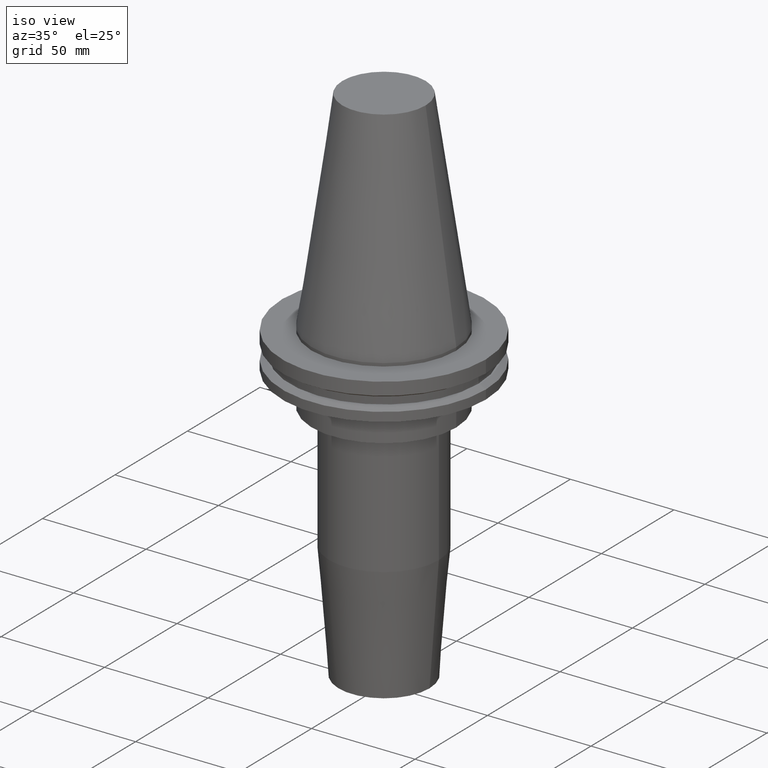
[diagram: clean part render]
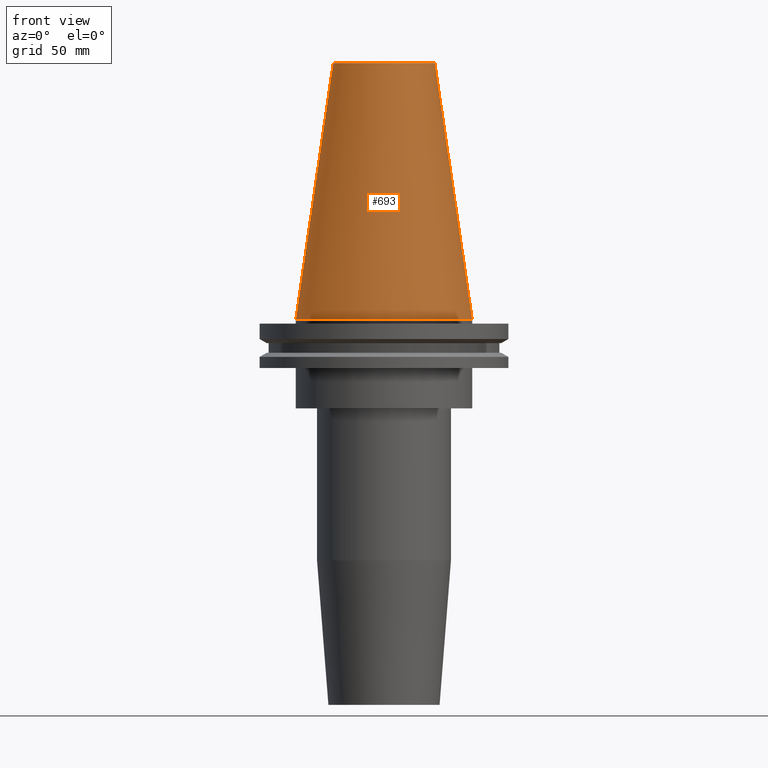
[diagram: tour spotlight — one face highlighted and labeled with its STEP entity id]
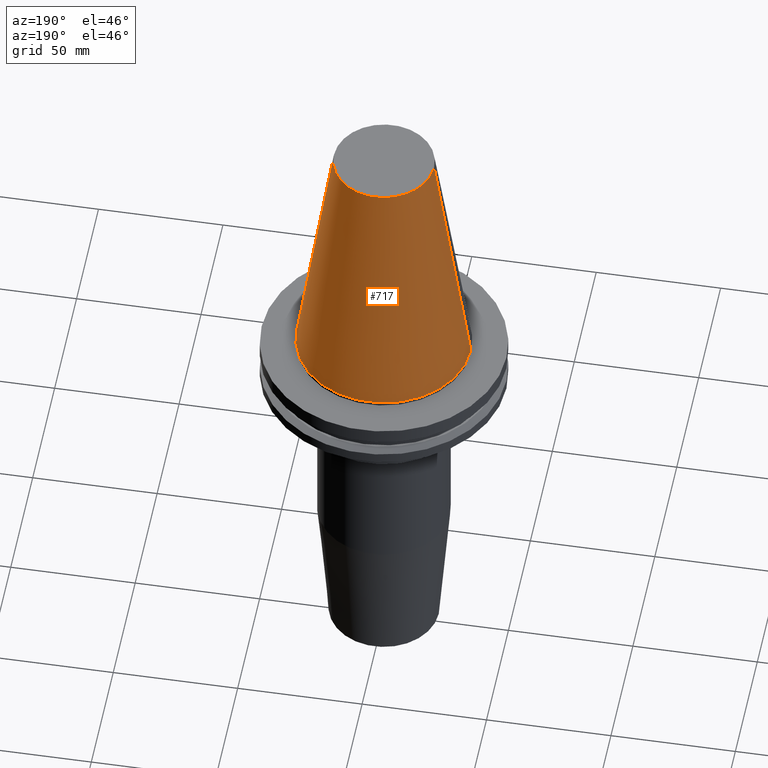
[diagram: tour spotlight — one face highlighted and labeled with its STEP entity id]
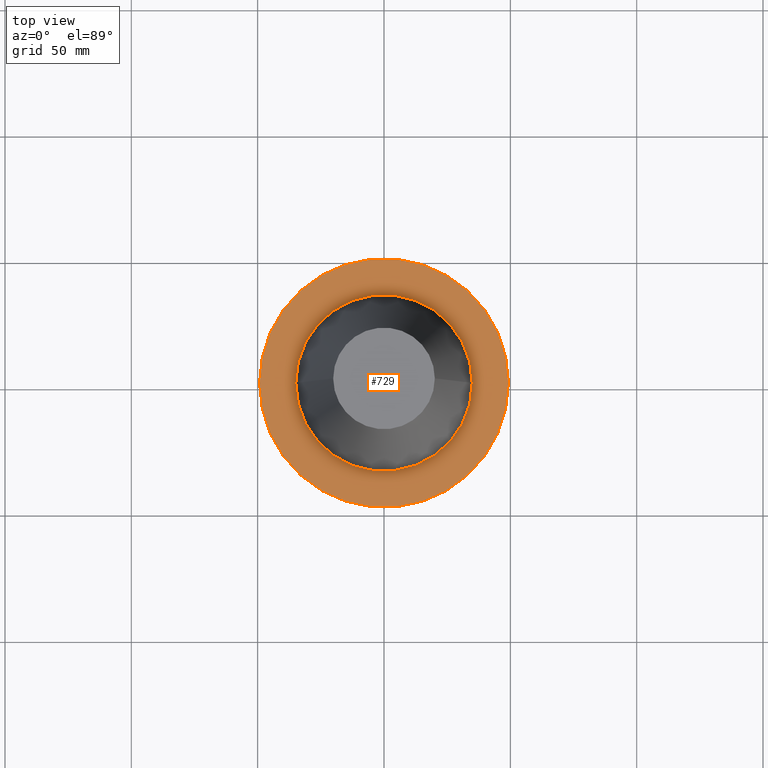
[diagram: tour spotlight — one face highlighted and labeled with its STEP entity id]
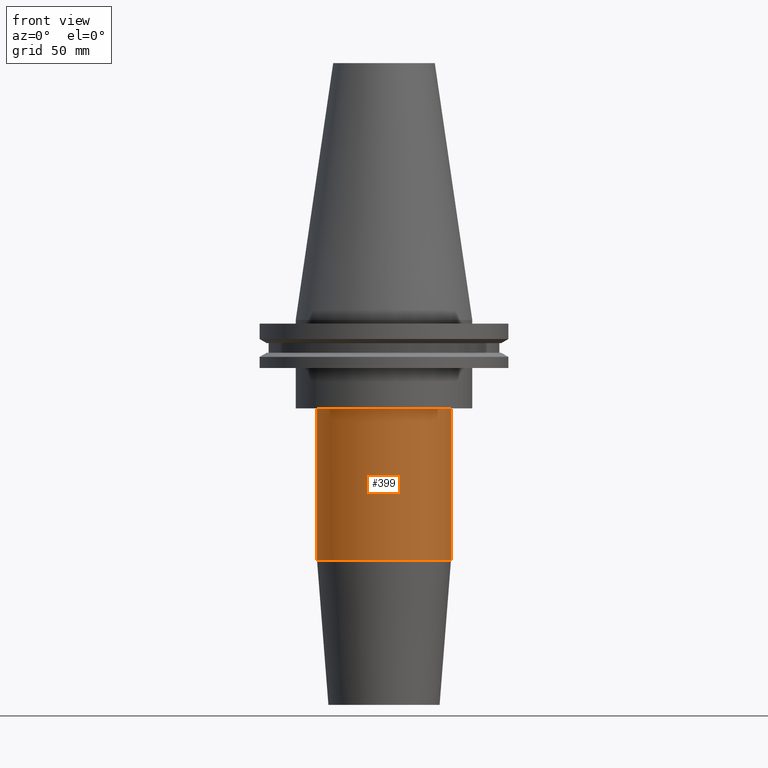
[diagram: tour spotlight — one face highlighted and labeled with its STEP entity id]
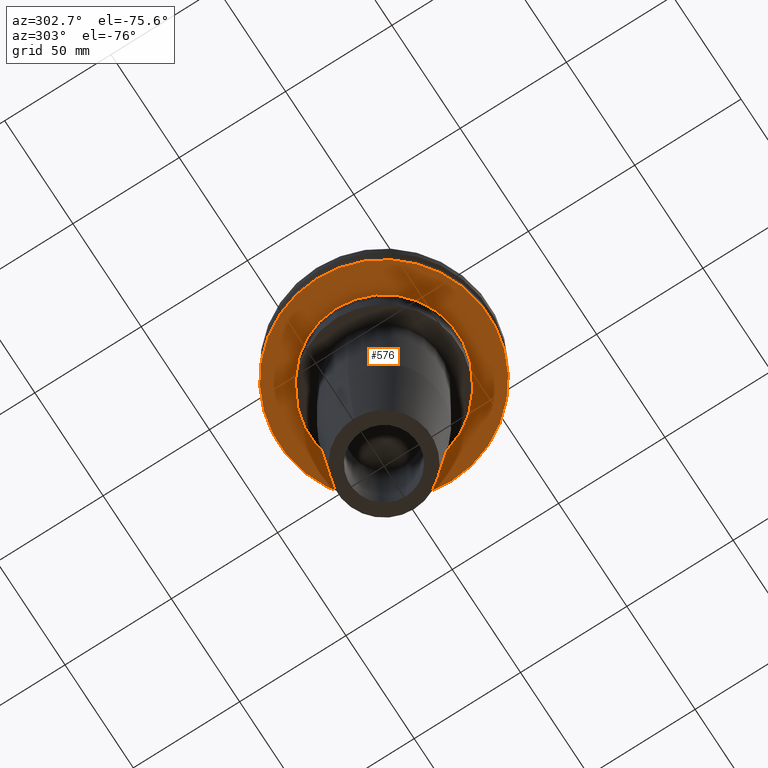
[diagram: tour spotlight — one face highlighted and labeled with its STEP entity id]
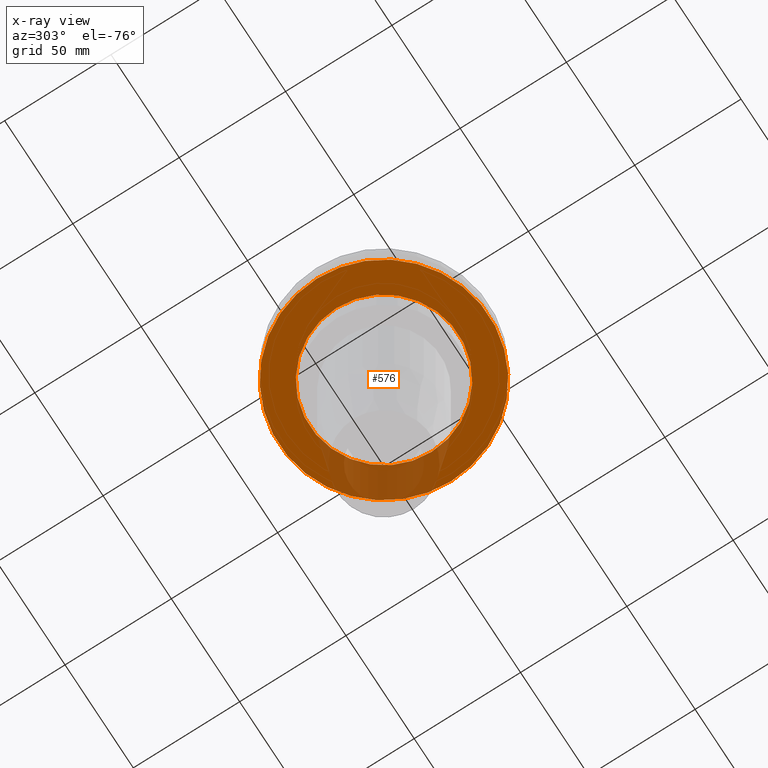
[diagram: x-ray of the same camera — body ghosted, this tour face saturated]
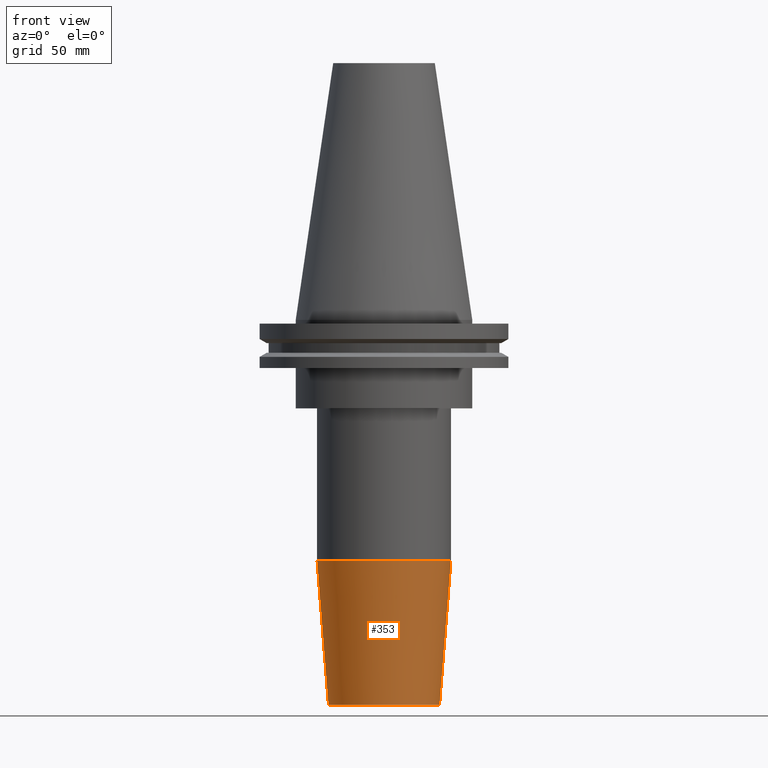
[diagram: tour spotlight — one face highlighted and labeled with its STEP entity id]
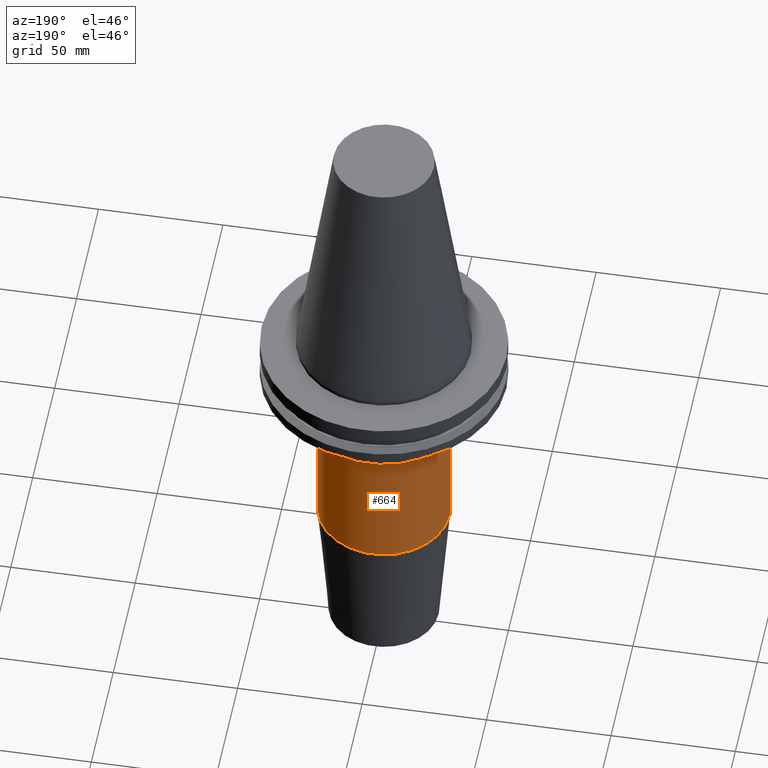
[diagram: tour spotlight — one face highlighted and labeled with its STEP entity id]
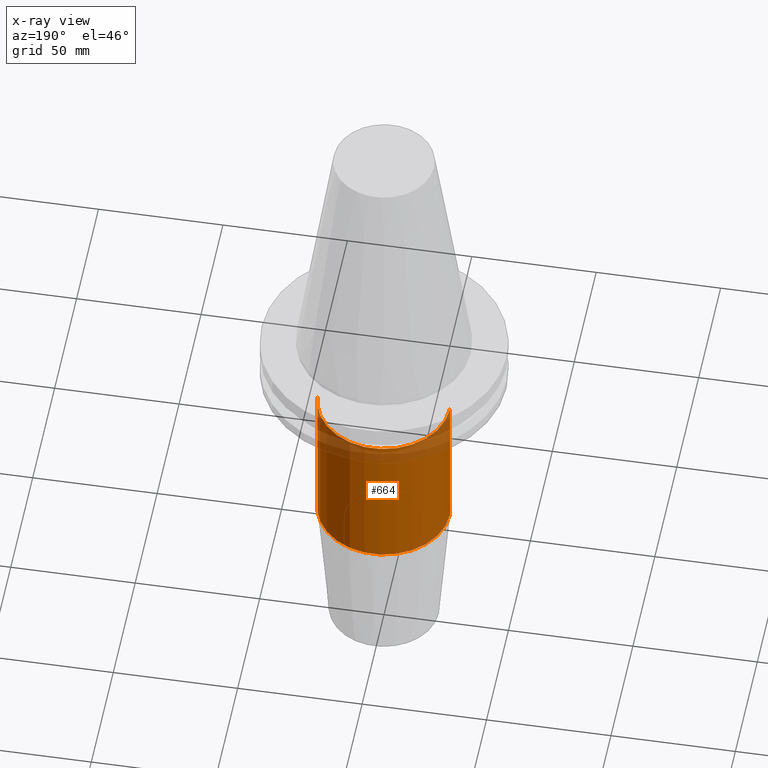
[diagram: x-ray of the same camera — body ghosted, this tour face saturated]
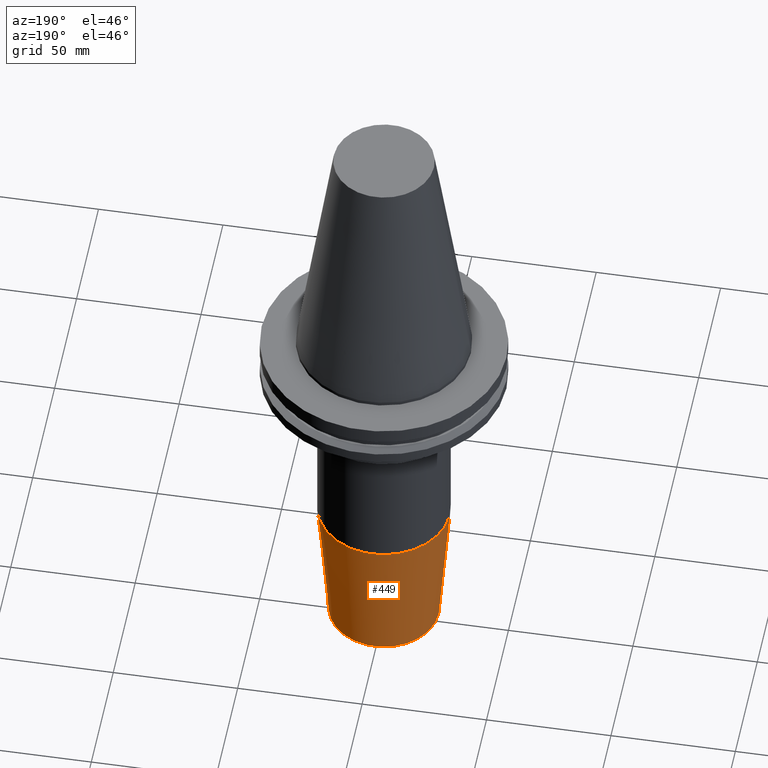
[diagram: tour spotlight — one face highlighted and labeled with its STEP entity id]
A machine part: a face-by-face anatomy tour. The part has 30 B-rep faces; the first image is the clean iso view, then the 8 largest visible faces are spotlighted one at a time (largest first), each with its STEP entity span.

Face 1 — front view, entity #693. In plain terms, the highlighted conical surface has half-angle 8.297 deg.
Definition (entity closure, byte-faithful):
#23 = DIRECTION ( 'NONE',  ( -0.000000000000000000, -0.000000000000000000, 1.000000000000000000 ) ) ;
#30 = DIRECTION ( 'NONE',  ( -0.000000000000000000, -0.000000000000000000, 1.000000000000000000 ) ) ;
#78 = EDGE_CURVE ( 'NONE', #554, #286, #797, .T. ) ;
#86 = VERTEX_POINT ( 'NONE', #502 ) ;
#93 = EDGE_CURVE ( 'NONE', #740, #554, #119, .T. ) ;
#119 = CIRCLE ( 'NONE', #433, 20.10819343178871321 ) ;
#139 = AXIS2_PLACEMENT_3D ( 'NONE', #521, #721, #320 ) ;
#142 = EDGE_CURVE ( 'NONE', #86, #286, #197, .T. ) ;
#197 = CIRCLE ( 'NONE', #501, 34.92499999999999005 ) ;
#204 = ORIENTED_EDGE ( 'NONE', *, *, #78, .F. ) ;
#212 = LINE ( 'NONE', #465, #503 ) ;
#227 = ORIENTED_EDGE ( 'NONE', *, *, #93, .F. ) ;
#255 = CARTESIAN_POINT ( 'NONE',  ( -20.10819343178871321, 0.000000000000000000, 101.5999999999999801 ) ) ;
#257 = EDGE_LOOP ( 'NONE', ( #204, #227, #631, #308 ) ) ;
#286 = VERTEX_POINT ( 'NONE', #852 ) ;
#308 = ORIENTED_EDGE ( 'NONE', *, *, #142, .T. ) ;
#320 = DIRECTION ( 'NONE',  ( -1.000000000000000000, 0.000000000000000000, 0.000000000000000000 ) ) ;
#355 = DIRECTION ( 'NONE',  ( -0.1443082272672999988, 0.000000000000000000, -0.9895327864921755756 ) ) ;
#409 = EDGE_CURVE ( 'NONE', #740, #86, #212, .T. ) ;
#418 = VECTOR ( 'NONE', #769, 999.9999999999998863 ) ;
#433 = AXIS2_PLACEMENT_3D ( 'NONE', #573, #30, #569 ) ;
#465 = CARTESIAN_POINT ( 'NONE',  ( -34.92499999999999005, 0.000000000000000000, 0.000000000000000000 ) ) ;
#501 = AXIS2_PLACEMENT_3D ( 'NONE', #633, #23, #694 ) ;
#502 = CARTESIAN_POINT ( 'NONE',  ( -34.92499999999999005, 0.000000000000000000, 0.000000000000000000 ) ) ;
#503 = VECTOR ( 'NONE', #355, 999.9999999999998863 ) ;
#521 = CARTESIAN_POINT ( 'NONE',  ( 0.000000000000000000, 0.000000000000000000, 0.000000000000000000 ) ) ;
#554 = VERTEX_POINT ( 'NONE', #700 ) ;
#569 = DIRECTION ( 'NONE',  ( 1.000000000000000000, 0.000000000000000000, 0.000000000000000000 ) ) ;
#573 = CARTESIAN_POINT ( 'NONE',  ( 0.000000000000000000, 0.000000000000000000, 101.5999999999999801 ) ) ;
#580 = FACE_OUTER_BOUND ( 'NONE', #257, .T. ) ;
#631 = ORIENTED_EDGE ( 'NONE', *, *, #409, .T. ) ;
#633 = CARTESIAN_POINT ( 'NONE',  ( 0.000000000000000000, 0.000000000000000000, 0.000000000000000000 ) ) ;
#671 = CARTESIAN_POINT ( 'NONE',  ( 34.92499999999999005, 4.277078946022130098E-15, 0.000000000000000000 ) ) ;
#693 = ADVANCED_FACE ( 'NONE', ( #580 ), #825, .T. ) ;
#694 = DIRECTION ( 'NONE',  ( 1.000000000000000000, 0.000000000000000000, 0.000000000000000000 ) ) ;
#700 = CARTESIAN_POINT ( 'NONE',  ( 20.10819343178871321, 3.369811209154858606E-15, 101.5999999999999801 ) ) ;
#721 = DIRECTION ( 'NONE',  ( 0.000000000000000000, 0.000000000000000000, -1.000000000000000000 ) ) ;
#740 = VERTEX_POINT ( 'NONE', #255 ) ;
#769 = DIRECTION ( 'NONE',  ( 0.1443082272672999988, 1.767266086135277066E-17, -0.9895327864921755756 ) ) ;
#797 = LINE ( 'NONE', #671, #418 ) ;
#825 = CONICAL_SURFACE ( 'NONE', #139, 34.92499999999999005, 0.1448138465474119452 ) ;
#852 = CARTESIAN_POINT ( 'NONE',  ( 34.92499999999999005, 4.277078946022130098E-15, 0.000000000000000000 ) ) ;

Face 2 — auxiliary view, entity #717. In plain terms, the highlighted conical surface has half-angle 8.297 deg.
Definition (entity closure, byte-faithful):
#33 = CIRCLE ( 'NONE', #518, 34.92499999999999005 ) ;
#47 = DIRECTION ( 'NONE',  ( -0.000000000000000000, -0.000000000000000000, 1.000000000000000000 ) ) ;
#64 = ORIENTED_EDGE ( 'NONE', *, *, #78, .T. ) ;
#67 = CIRCLE ( 'NONE', #443, 20.10819343178871321 ) ;
#78 = EDGE_CURVE ( 'NONE', #554, #286, #797, .T. ) ;
#86 = VERTEX_POINT ( 'NONE', #502 ) ;
#110 = ORIENTED_EDGE ( 'NONE', *, *, #409, .F. ) ;
#178 = ORIENTED_EDGE ( 'NONE', *, *, #304, .T. ) ;
#212 = LINE ( 'NONE', #465, #503 ) ;
#255 = CARTESIAN_POINT ( 'NONE',  ( -20.10819343178871321, 0.000000000000000000, 101.5999999999999801 ) ) ;
#286 = VERTEX_POINT ( 'NONE', #852 ) ;
#304 = EDGE_CURVE ( 'NONE', #286, #86, #33, .T. ) ;
#346 = ORIENTED_EDGE ( 'NONE', *, *, #724, .F. ) ;
#355 = DIRECTION ( 'NONE',  ( -0.1443082272672999988, 0.000000000000000000, -0.9895327864921755756 ) ) ;
#409 = EDGE_CURVE ( 'NONE', #740, #86, #212, .T. ) ;
#418 = VECTOR ( 'NONE', #769, 999.9999999999998863 ) ;
#443 = AXIS2_PLACEMENT_3D ( 'NONE', #771, #47, #647 ) ;
#444 = CONICAL_SURFACE ( 'NONE', #550, 34.92499999999999005, 0.1448138465474119452 ) ;
#451 = DIRECTION ( 'NONE',  ( 0.000000000000000000, 0.000000000000000000, -1.000000000000000000 ) ) ;
#465 = CARTESIAN_POINT ( 'NONE',  ( -34.92499999999999005, 0.000000000000000000, 0.000000000000000000 ) ) ;
#502 = CARTESIAN_POINT ( 'NONE',  ( -34.92499999999999005, 0.000000000000000000, 0.000000000000000000 ) ) ;
#503 = VECTOR ( 'NONE', #355, 999.9999999999998863 ) ;
#505 = DIRECTION ( 'NONE',  ( -1.000000000000000000, 0.000000000000000000, 0.000000000000000000 ) ) ;
#518 = AXIS2_PLACEMENT_3D ( 'NONE', #716, #840, #645 ) ;
#550 = AXIS2_PLACEMENT_3D ( 'NONE', #850, #451, #505 ) ;
#554 = VERTEX_POINT ( 'NONE', #700 ) ;
#591 = FACE_OUTER_BOUND ( 'NONE', #782, .T. ) ;
#645 = DIRECTION ( 'NONE',  ( 1.000000000000000000, 0.000000000000000000, 0.000000000000000000 ) ) ;
#647 = DIRECTION ( 'NONE',  ( 1.000000000000000000, 0.000000000000000000, 0.000000000000000000 ) ) ;
#671 = CARTESIAN_POINT ( 'NONE',  ( 34.92499999999999005, 4.277078946022130098E-15, 0.000000000000000000 ) ) ;
#700 = CARTESIAN_POINT ( 'NONE',  ( 20.10819343178871321, 3.369811209154858606E-15, 101.5999999999999801 ) ) ;
#716 = CARTESIAN_POINT ( 'NONE',  ( 0.000000000000000000, 0.000000000000000000, 0.000000000000000000 ) ) ;
#717 = ADVANCED_FACE ( 'NONE', ( #591 ), #444, .T. ) ;
#724 = EDGE_CURVE ( 'NONE', #554, #740, #67, .T. ) ;
#740 = VERTEX_POINT ( 'NONE', #255 ) ;
#769 = DIRECTION ( 'NONE',  ( 0.1443082272672999988, 1.767266086135277066E-17, -0.9895327864921755756 ) ) ;
#771 = CARTESIAN_POINT ( 'NONE',  ( 0.000000000000000000, 0.000000000000000000, 101.5999999999999801 ) ) ;
#782 = EDGE_LOOP ( 'NONE', ( #346, #64, #178, #110 ) ) ;
#797 = LINE ( 'NONE', #671, #418 ) ;
#840 = DIRECTION ( 'NONE',  ( -0.000000000000000000, -0.000000000000000000, 1.000000000000000000 ) ) ;
#850 = CARTESIAN_POINT ( 'NONE',  ( 0.000000000000000000, 0.000000000000000000, 0.000000000000000000 ) ) ;
#852 = CARTESIAN_POINT ( 'NONE',  ( 34.92499999999999005, 4.277078946022130098E-15, 0.000000000000000000 ) ) ;

Face 3 — top view, entity #729. In plain terms, the highlighted planar face has unit normal (0, 0, -1).
Definition (entity closure, byte-faithful):
#41 = ORIENTED_EDGE ( 'NONE', *, *, #565, .F. ) ;
#55 = PLANE ( 'NONE',  #192 ) ;
#63 = CARTESIAN_POINT ( 'NONE',  ( -34.92499999999999005, 4.277078946022130098E-15, -1.499999999999987566 ) ) ;
#80 = ORIENTED_EDGE ( 'NONE', *, *, #301, .T. ) ;
#91 = EDGE_LOOP ( 'NONE', ( #232, #80 ) ) ;
#122 = CARTESIAN_POINT ( 'NONE',  ( 0.000000000000000000, 0.000000000000000000, -1.499999999999987566 ) ) ;
#157 = AXIS2_PLACEMENT_3D ( 'NONE', #424, #831, #359 ) ;
#181 = DIRECTION ( 'NONE',  ( -0.000000000000000000, -0.000000000000000000, 1.000000000000000000 ) ) ;
#192 = AXIS2_PLACEMENT_3D ( 'NONE', #585, #835, #263 ) ;
#194 = DIRECTION ( 'NONE',  ( 1.000000000000000000, 0.000000000000000000, 0.000000000000000000 ) ) ;
#205 = CIRCLE ( 'NONE', #677, 49.21499999999999631 ) ;
#232 = ORIENTED_EDGE ( 'NONE', *, *, #758, .T. ) ;
#263 = DIRECTION ( 'NONE',  ( -1.000000000000000000, 0.000000000000000000, -0.000000000000000000 ) ) ;
#301 = EDGE_CURVE ( 'NONE', #316, #463, #344, .T. ) ;
#306 = CARTESIAN_POINT ( 'NONE',  ( 49.21499999999999631, 0.000000000000000000, -1.499999999999987566 ) ) ;
#316 = VERTEX_POINT ( 'NONE', #658 ) ;
#344 = CIRCLE ( 'NONE', #818, 49.21499999999999631 ) ;
#359 = DIRECTION ( 'NONE',  ( 1.000000000000000000, 0.000000000000000000, 0.000000000000000000 ) ) ;
#380 = ORIENTED_EDGE ( 'NONE', *, *, #552, .F. ) ;
#385 = DIRECTION ( 'NONE',  ( -0.000000000000000000, -0.000000000000000000, 1.000000000000000000 ) ) ;
#424 = CARTESIAN_POINT ( 'NONE',  ( 0.000000000000000000, 0.000000000000000000, -1.499999999999987566 ) ) ;
#441 = FACE_BOUND ( 'NONE', #611, .T. ) ;
#463 = VERTEX_POINT ( 'NONE', #306 ) ;
#468 = CARTESIAN_POINT ( 'NONE',  ( 34.92499999999999005, 0.000000000000000000, -1.499999999999987566 ) ) ;
#480 = AXIS2_PLACEMENT_3D ( 'NONE', #616, #181, #499 ) ;
#499 = DIRECTION ( 'NONE',  ( 1.000000000000000000, 0.000000000000000000, 0.000000000000000000 ) ) ;
#524 = CIRCLE ( 'NONE', #157, 34.92499999999999005 ) ;
#552 = EDGE_CURVE ( 'NONE', #654, #791, #637, .T. ) ;
#565 = EDGE_CURVE ( 'NONE', #791, #654, #524, .T. ) ;
#575 = FACE_OUTER_BOUND ( 'NONE', #91, .T. ) ;
#585 = CARTESIAN_POINT ( 'NONE',  ( 0.000000000000000000, 49.21499999999999631, -1.499999999999992895 ) ) ;
#611 = EDGE_LOOP ( 'NONE', ( #41, #380 ) ) ;
#616 = CARTESIAN_POINT ( 'NONE',  ( 0.000000000000000000, 0.000000000000000000, -1.499999999999987566 ) ) ;
#637 = CIRCLE ( 'NONE', #480, 34.92499999999999005 ) ;
#654 = VERTEX_POINT ( 'NONE', #63 ) ;
#658 = CARTESIAN_POINT ( 'NONE',  ( -49.21499999999999631, 6.027099222003697826E-15, -1.499999999999987566 ) ) ;
#677 = AXIS2_PLACEMENT_3D ( 'NONE', #783, #776, #194 ) ;
#729 = ADVANCED_FACE ( 'NONE', ( #441, #575 ), #55, .F. ) ;
#758 = EDGE_CURVE ( 'NONE', #463, #316, #205, .T. ) ;
#776 = DIRECTION ( 'NONE',  ( -0.000000000000000000, -0.000000000000000000, 1.000000000000000000 ) ) ;
#783 = CARTESIAN_POINT ( 'NONE',  ( 0.000000000000000000, 0.000000000000000000, -1.499999999999987566 ) ) ;
#786 = DIRECTION ( 'NONE',  ( 1.000000000000000000, 0.000000000000000000, 0.000000000000000000 ) ) ;
#791 = VERTEX_POINT ( 'NONE', #468 ) ;
#818 = AXIS2_PLACEMENT_3D ( 'NONE', #122, #385, #786 ) ;
#831 = DIRECTION ( 'NONE',  ( -0.000000000000000000, -0.000000000000000000, 1.000000000000000000 ) ) ;
#835 = DIRECTION ( 'NONE',  ( 0.000000000000000000, 0.000000000000000000, -1.000000000000000000 ) ) ;

Face 4 — front view, entity #399. In plain terms, the highlighted cylindrical surface (partial cylindrical patch) has radius 26.5 mm, axis along (-0, -0, 1).
Definition (entity closure, byte-faithful):
#17 = CARTESIAN_POINT ( 'NONE',  ( 26.50000000000000000, 0.000000000000000000, -35.04999999999999716 ) ) ;
#24 = ORIENTED_EDGE ( 'NONE', *, *, #388, .F. ) ;
#39 = CARTESIAN_POINT ( 'NONE',  ( 0.000000000000000000, 0.000000000000000000, -35.04999999999999716 ) ) ;
#73 = VECTOR ( 'NONE', #854, 1000.000000000000000 ) ;
#144 = LINE ( 'NONE', #404, #379 ) ;
#160 = CARTESIAN_POINT ( 'NONE',  ( -26.50000000000000000, 3.245314017740485765E-15, -95.22207868720845170 ) ) ;
#168 = VERTEX_POINT ( 'NONE', #765 ) ;
#169 = DIRECTION ( 'NONE',  ( -0.000000000000000000, -0.000000000000000000, 1.000000000000000000 ) ) ;
#171 = AXIS2_PLACEMENT_3D ( 'NONE', #39, #169, #364 ) ;
#176 = EDGE_CURVE ( 'NONE', #548, #168, #626, .T. ) ;
#201 = ORIENTED_EDGE ( 'NONE', *, *, #176, .T. ) ;
#252 = DIRECTION ( 'NONE',  ( -0.000000000000000000, -0.000000000000000000, 1.000000000000000000 ) ) ;
#283 = CYLINDRICAL_SURFACE ( 'NONE', #710, 26.50000000000000000 ) ;
#364 = DIRECTION ( 'NONE',  ( 1.000000000000000000, 0.000000000000000000, 0.000000000000000000 ) ) ;
#379 = VECTOR ( 'NONE', #801, 1000.000000000000000 ) ;
#388 = EDGE_CURVE ( 'NONE', #548, #744, #805, .T. ) ;
#399 = ADVANCED_FACE ( 'NONE', ( #599 ), #283, .T. ) ;
#404 = CARTESIAN_POINT ( 'NONE',  ( 26.50000000000000000, 0.000000000000000000, 0.000000000000000000 ) ) ;
#411 = VERTEX_POINT ( 'NONE', #17 ) ;
#420 = EDGE_LOOP ( 'NONE', ( #24, #201, #459, #634 ) ) ;
#432 = EDGE_CURVE ( 'NONE', #168, #411, #144, .T. ) ;
#459 = ORIENTED_EDGE ( 'NONE', *, *, #432, .T. ) ;
#469 = CARTESIAN_POINT ( 'NONE',  ( -26.50000000000000000, 3.245314017740485765E-15, 0.000000000000000000 ) ) ;
#484 = EDGE_CURVE ( 'NONE', #744, #411, #691, .T. ) ;
#506 = DIRECTION ( 'NONE',  ( 1.000000000000000000, 0.000000000000000000, 0.000000000000000000 ) ) ;
#508 = CARTESIAN_POINT ( 'NONE',  ( -26.50000000000000000, 3.245314017740485765E-15, -35.04999999999999716 ) ) ;
#536 = CARTESIAN_POINT ( 'NONE',  ( 0.000000000000000000, 0.000000000000000000, 0.000000000000000000 ) ) ;
#548 = VERTEX_POINT ( 'NONE', #160 ) ;
#599 = FACE_OUTER_BOUND ( 'NONE', #420, .T. ) ;
#626 = CIRCLE ( 'NONE', #723, 26.50000000000000000 ) ;
#634 = ORIENTED_EDGE ( 'NONE', *, *, #484, .F. ) ;
#679 = DIRECTION ( 'NONE',  ( 1.000000000000000000, 0.000000000000000000, 0.000000000000000000 ) ) ;
#691 = CIRCLE ( 'NONE', #171, 26.50000000000000000 ) ;
#697 = CARTESIAN_POINT ( 'NONE',  ( 0.000000000000000000, 0.000000000000000000, -95.22207868720845170 ) ) ;
#710 = AXIS2_PLACEMENT_3D ( 'NONE', #536, #792, #679 ) ;
#723 = AXIS2_PLACEMENT_3D ( 'NONE', #697, #252, #506 ) ;
#744 = VERTEX_POINT ( 'NONE', #508 ) ;
#765 = CARTESIAN_POINT ( 'NONE',  ( 26.50000000000000000, 0.000000000000000000, -95.22207868720845170 ) ) ;
#792 = DIRECTION ( 'NONE',  ( -0.000000000000000000, -0.000000000000000000, 1.000000000000000000 ) ) ;
#801 = DIRECTION ( 'NONE',  ( -0.000000000000000000, -0.000000000000000000, 1.000000000000000000 ) ) ;
#805 = LINE ( 'NONE', #469, #73 ) ;
#854 = DIRECTION ( 'NONE',  ( -0.000000000000000000, -0.000000000000000000, 1.000000000000000000 ) ) ;

Face 5 — auxiliary view, entity #576. An x-ray twin of the same camera follows (body ghosted, this face saturated) — the face is partly hidden behind the body. In plain terms, the highlighted planar face has unit normal (0, -0, 1).
Definition (entity closure, byte-faithful):
#8 = CIRCLE ( 'NONE', #837, 49.21499999999998920 ) ;
#32 = AXIS2_PLACEMENT_3D ( 'NONE', #167, #434, #374 ) ;
#43 = DIRECTION ( 'NONE',  ( 0.000000000000000000, -0.000000000000000000, 1.000000000000000000 ) ) ;
#95 = DIRECTION ( 'NONE',  ( -0.000000000000000000, -0.000000000000000000, 1.000000000000000000 ) ) ;
#108 = CARTESIAN_POINT ( 'NONE',  ( 0.000000000000000000, 0.000000000000000000, -19.04999999999999716 ) ) ;
#111 = FACE_BOUND ( 'NONE', #512, .T. ) ;
#126 = AXIS2_PLACEMENT_3D ( 'NONE', #695, #95, #247 ) ;
#167 = CARTESIAN_POINT ( 'NONE',  ( 0.000000000000000000, 0.000000000000000000, -19.04999999999999716 ) ) ;
#172 = ORIENTED_EDGE ( 'NONE', *, *, #198, .T. ) ;
#198 = EDGE_CURVE ( 'NONE', #661, #811, #557, .T. ) ;
#214 = EDGE_CURVE ( 'NONE', #811, #661, #402, .T. ) ;
#239 = DIRECTION ( 'NONE',  ( 1.000000000000000000, 0.000000000000000000, 0.000000000000000000 ) ) ;
#247 = DIRECTION ( 'NONE',  ( 1.000000000000000000, 0.000000000000000000, 0.000000000000000000 ) ) ;
#251 = DIRECTION ( 'NONE',  ( 1.000000000000000000, 0.000000000000000000, 0.000000000000000000 ) ) ;
#296 = PLANE ( 'NONE',  #366 ) ;
#335 = VERTEX_POINT ( 'NONE', #348 ) ;
#348 = CARTESIAN_POINT ( 'NONE',  ( -49.21499999999998920, 6.027099222003697037E-15, -19.04999999999999716 ) ) ;
#361 = EDGE_LOOP ( 'NONE', ( #579, #478 ) ) ;
#366 = AXIS2_PLACEMENT_3D ( 'NONE', #377, #43, #251 ) ;
#374 = DIRECTION ( 'NONE',  ( 1.000000000000000000, 0.000000000000000000, 0.000000000000000000 ) ) ;
#377 = CARTESIAN_POINT ( 'NONE',  ( 0.000000000000000000, 49.21499999999998920, -19.04999999999999716 ) ) ;
#402 = CIRCLE ( 'NONE', #32, 34.92499999999999716 ) ;
#412 = CARTESIAN_POINT ( 'NONE',  ( 34.92499999999999716, 0.000000000000000000, -19.04999999999999716 ) ) ;
#434 = DIRECTION ( 'NONE',  ( -0.000000000000000000, -0.000000000000000000, 1.000000000000000000 ) ) ;
#474 = EDGE_CURVE ( 'NONE', #672, #335, #8, .T. ) ;
#478 = ORIENTED_EDGE ( 'NONE', *, *, #539, .F. ) ;
#512 = EDGE_LOOP ( 'NONE', ( #528, #172 ) ) ;
#528 = ORIENTED_EDGE ( 'NONE', *, *, #214, .T. ) ;
#539 = EDGE_CURVE ( 'NONE', #335, #672, #594, .T. ) ;
#557 = CIRCLE ( 'NONE', #780, 34.92499999999999716 ) ;
#576 = ADVANCED_FACE ( 'NONE', ( #822, #111 ), #296, .F. ) ;
#579 = ORIENTED_EDGE ( 'NONE', *, *, #474, .F. ) ;
#594 = CIRCLE ( 'NONE', #126, 49.21499999999998920 ) ;
#632 = CARTESIAN_POINT ( 'NONE',  ( 0.000000000000000000, 0.000000000000000000, -19.04999999999999716 ) ) ;
#636 = DIRECTION ( 'NONE',  ( -0.000000000000000000, -0.000000000000000000, 1.000000000000000000 ) ) ;
#661 = VERTEX_POINT ( 'NONE', #779 ) ;
#672 = VERTEX_POINT ( 'NONE', #713 ) ;
#695 = CARTESIAN_POINT ( 'NONE',  ( 0.000000000000000000, 0.000000000000000000, -19.04999999999999716 ) ) ;
#713 = CARTESIAN_POINT ( 'NONE',  ( 49.21499999999998920, 0.000000000000000000, -19.04999999999999716 ) ) ;
#752 = DIRECTION ( 'NONE',  ( 1.000000000000000000, 0.000000000000000000, 0.000000000000000000 ) ) ;
#757 = DIRECTION ( 'NONE',  ( -0.000000000000000000, -0.000000000000000000, 1.000000000000000000 ) ) ;
#779 = CARTESIAN_POINT ( 'NONE',  ( -34.92499999999999716, 4.277078946022130887E-15, -19.04999999999999716 ) ) ;
#780 = AXIS2_PLACEMENT_3D ( 'NONE', #108, #757, #239 ) ;
#811 = VERTEX_POINT ( 'NONE', #412 ) ;
#822 = FACE_OUTER_BOUND ( 'NONE', #361, .T. ) ;
#837 = AXIS2_PLACEMENT_3D ( 'NONE', #632, #636, #752 ) ;

Face 6 — front view, entity #353. In plain terms, the highlighted conical surface has half-angle 4.5 deg.
Definition (entity closure, byte-faithful):
#71 = DIRECTION ( 'NONE',  ( 1.000000000000000000, 0.000000000000000000, 0.000000000000000000 ) ) ;
#102 = VERTEX_POINT ( 'NONE', #307 ) ;
#158 = ORIENTED_EDGE ( 'NONE', *, *, #482, .T. ) ;
#160 = CARTESIAN_POINT ( 'NONE',  ( -26.50000000000000000, 3.245314017740485765E-15, -95.22207868720845170 ) ) ;
#168 = VERTEX_POINT ( 'NONE', #765 ) ;
#176 = EDGE_CURVE ( 'NONE', #548, #168, #626, .T. ) ;
#177 = CARTESIAN_POINT ( 'NONE',  ( 0.000000000000000000, 0.000000000000000000, -152.4000000000000057 ) ) ;
#183 = EDGE_CURVE ( 'NONE', #799, #102, #641, .T. ) ;
#233 = CARTESIAN_POINT ( 'NONE',  ( -22.00000000000000000, 2.694222958124176809E-15, -152.4000000000000057 ) ) ;
#252 = DIRECTION ( 'NONE',  ( -0.000000000000000000, -0.000000000000000000, 1.000000000000000000 ) ) ;
#282 = VECTOR ( 'NONE', #692, 999.9999999999998863 ) ;
#288 = DIRECTION ( 'NONE',  ( -0.000000000000000000, -0.000000000000000000, 1.000000000000000000 ) ) ;
#307 = CARTESIAN_POINT ( 'NONE',  ( 22.00000000000000000, 0.000000000000000000, -152.4000000000000057 ) ) ;
#314 = LINE ( 'NONE', #417, #620 ) ;
#328 = AXIS2_PLACEMENT_3D ( 'NONE', #743, #288, #71 ) ;
#353 = ADVANCED_FACE ( 'NONE', ( #674 ), #845, .T. ) ;
#391 = ORIENTED_EDGE ( 'NONE', *, *, #578, .F. ) ;
#417 = CARTESIAN_POINT ( 'NONE',  ( 22.00000000000000000, 0.000000000000000000, -152.4000000000000057 ) ) ;
#426 = ORIENTED_EDGE ( 'NONE', *, *, #176, .F. ) ;
#472 = CARTESIAN_POINT ( 'NONE',  ( -22.00000000000000000, 2.969768487932331287E-15, -152.4000000000000057 ) ) ;
#482 = EDGE_CURVE ( 'NONE', #102, #168, #314, .T. ) ;
#491 = DIRECTION ( 'NONE',  ( 0.07845909572783764385, 0.000000000000000000, 0.9969173337331286300 ) ) ;
#506 = DIRECTION ( 'NONE',  ( 1.000000000000000000, 0.000000000000000000, 0.000000000000000000 ) ) ;
#548 = VERTEX_POINT ( 'NONE', #160 ) ;
#578 = EDGE_CURVE ( 'NONE', #799, #548, #685, .T. ) ;
#620 = VECTOR ( 'NONE', #491, 999.9999999999998863 ) ;
#626 = CIRCLE ( 'NONE', #723, 26.50000000000000000 ) ;
#641 = CIRCLE ( 'NONE', #683, 22.00000000000000000 ) ;
#674 = FACE_OUTER_BOUND ( 'NONE', #725, .T. ) ;
#683 = AXIS2_PLACEMENT_3D ( 'NONE', #177, #815, #821 ) ;
#685 = LINE ( 'NONE', #233, #282 ) ;
#692 = DIRECTION ( 'NONE',  ( -0.07845909572783764385, 9.608468044709212160E-18, 0.9969173337331286300 ) ) ;
#697 = CARTESIAN_POINT ( 'NONE',  ( 0.000000000000000000, 0.000000000000000000, -95.22207868720845170 ) ) ;
#723 = AXIS2_PLACEMENT_3D ( 'NONE', #697, #252, #506 ) ;
#725 = EDGE_LOOP ( 'NONE', ( #391, #841, #158, #426 ) ) ;
#743 = CARTESIAN_POINT ( 'NONE',  ( 0.000000000000000000, 0.000000000000000000, -152.4000000000000057 ) ) ;
#765 = CARTESIAN_POINT ( 'NONE',  ( 26.50000000000000000, 0.000000000000000000, -95.22207868720845170 ) ) ;
#799 = VERTEX_POINT ( 'NONE', #472 ) ;
#815 = DIRECTION ( 'NONE',  ( -0.000000000000000000, -0.000000000000000000, 1.000000000000000000 ) ) ;
#821 = DIRECTION ( 'NONE',  ( 1.000000000000000000, 0.000000000000000000, 0.000000000000000000 ) ) ;
#841 = ORIENTED_EDGE ( 'NONE', *, *, #183, .T. ) ;
#845 = CONICAL_SURFACE ( 'NONE', #328, 22.00000000000000000, 0.07853981633973751431 ) ;

Face 7 — auxiliary view, entity #664. An x-ray twin of the same camera follows (body ghosted, this face saturated) — the face is partly hidden behind the body. In plain terms, the highlighted cylindrical surface (partial cylindrical patch) has radius 26.5 mm, axis along (-0, -0, 1).
Definition (entity closure, byte-faithful):
#13 = CARTESIAN_POINT ( 'NONE',  ( 0.000000000000000000, 0.000000000000000000, -35.04999999999999716 ) ) ;
#17 = CARTESIAN_POINT ( 'NONE',  ( 26.50000000000000000, 0.000000000000000000, -35.04999999999999716 ) ) ;
#73 = VECTOR ( 'NONE', #854, 1000.000000000000000 ) ;
#115 = DIRECTION ( 'NONE',  ( 1.000000000000000000, 0.000000000000000000, 0.000000000000000000 ) ) ;
#121 = FACE_OUTER_BOUND ( 'NONE', #504, .T. ) ;
#131 = CARTESIAN_POINT ( 'NONE',  ( 0.000000000000000000, 0.000000000000000000, 0.000000000000000000 ) ) ;
#144 = LINE ( 'NONE', #404, #379 ) ;
#146 = CIRCLE ( 'NONE', #371, 26.50000000000000000 ) ;
#160 = CARTESIAN_POINT ( 'NONE',  ( -26.50000000000000000, 3.245314017740485765E-15, -95.22207868720845170 ) ) ;
#168 = VERTEX_POINT ( 'NONE', #765 ) ;
#200 = CYLINDRICAL_SURFACE ( 'NONE', #495, 26.50000000000000000 ) ;
#258 = AXIS2_PLACEMENT_3D ( 'NONE', #477, #800, #464 ) ;
#279 = ORIENTED_EDGE ( 'NONE', *, *, #773, .T. ) ;
#327 = EDGE_CURVE ( 'NONE', #411, #744, #146, .T. ) ;
#339 = DIRECTION ( 'NONE',  ( 1.000000000000000000, 0.000000000000000000, 0.000000000000000000 ) ) ;
#350 = ORIENTED_EDGE ( 'NONE', *, *, #388, .T. ) ;
#371 = AXIS2_PLACEMENT_3D ( 'NONE', #13, #670, #339 ) ;
#375 = ORIENTED_EDGE ( 'NONE', *, *, #432, .F. ) ;
#379 = VECTOR ( 'NONE', #801, 1000.000000000000000 ) ;
#388 = EDGE_CURVE ( 'NONE', #548, #744, #805, .T. ) ;
#397 = ORIENTED_EDGE ( 'NONE', *, *, #327, .F. ) ;
#404 = CARTESIAN_POINT ( 'NONE',  ( 26.50000000000000000, 0.000000000000000000, 0.000000000000000000 ) ) ;
#411 = VERTEX_POINT ( 'NONE', #17 ) ;
#432 = EDGE_CURVE ( 'NONE', #168, #411, #144, .T. ) ;
#464 = DIRECTION ( 'NONE',  ( 1.000000000000000000, 0.000000000000000000, 0.000000000000000000 ) ) ;
#469 = CARTESIAN_POINT ( 'NONE',  ( -26.50000000000000000, 3.245314017740485765E-15, 0.000000000000000000 ) ) ;
#477 = CARTESIAN_POINT ( 'NONE',  ( 0.000000000000000000, 0.000000000000000000, -95.22207868720845170 ) ) ;
#495 = AXIS2_PLACEMENT_3D ( 'NONE', #131, #519, #115 ) ;
#504 = EDGE_LOOP ( 'NONE', ( #279, #350, #397, #375 ) ) ;
#508 = CARTESIAN_POINT ( 'NONE',  ( -26.50000000000000000, 3.245314017740485765E-15, -35.04999999999999716 ) ) ;
#519 = DIRECTION ( 'NONE',  ( -0.000000000000000000, -0.000000000000000000, 1.000000000000000000 ) ) ;
#548 = VERTEX_POINT ( 'NONE', #160 ) ;
#664 = ADVANCED_FACE ( 'NONE', ( #121 ), #200, .T. ) ;
#670 = DIRECTION ( 'NONE',  ( -0.000000000000000000, -0.000000000000000000, 1.000000000000000000 ) ) ;
#744 = VERTEX_POINT ( 'NONE', #508 ) ;
#765 = CARTESIAN_POINT ( 'NONE',  ( 26.50000000000000000, 0.000000000000000000, -95.22207868720845170 ) ) ;
#773 = EDGE_CURVE ( 'NONE', #168, #548, #775, .T. ) ;
#775 = CIRCLE ( 'NONE', #258, 26.50000000000000000 ) ;
#800 = DIRECTION ( 'NONE',  ( -0.000000000000000000, -0.000000000000000000, 1.000000000000000000 ) ) ;
#801 = DIRECTION ( 'NONE',  ( -0.000000000000000000, -0.000000000000000000, 1.000000000000000000 ) ) ;
#805 = LINE ( 'NONE', #469, #73 ) ;
#854 = DIRECTION ( 'NONE',  ( -0.000000000000000000, -0.000000000000000000, 1.000000000000000000 ) ) ;

Face 8 — auxiliary view, entity #449. In plain terms, the highlighted conical surface has half-angle 4.5 deg.
Definition (entity closure, byte-faithful):
#21 = CARTESIAN_POINT ( 'NONE',  ( 0.000000000000000000, 0.000000000000000000, -152.4000000000000057 ) ) ;
#28 = DIRECTION ( 'NONE',  ( 1.000000000000000000, 0.000000000000000000, 0.000000000000000000 ) ) ;
#42 = CONICAL_SURFACE ( 'NONE', #662, 22.00000000000000000, 0.07853981633973751431 ) ;
#100 = FACE_OUTER_BOUND ( 'NONE', #261, .T. ) ;
#102 = VERTEX_POINT ( 'NONE', #307 ) ;
#160 = CARTESIAN_POINT ( 'NONE',  ( -26.50000000000000000, 3.245314017740485765E-15, -95.22207868720845170 ) ) ;
#168 = VERTEX_POINT ( 'NONE', #765 ) ;
#216 = CIRCLE ( 'NONE', #457, 22.00000000000000000 ) ;
#233 = CARTESIAN_POINT ( 'NONE',  ( -22.00000000000000000, 2.694222958124176809E-15, -152.4000000000000057 ) ) ;
#258 = AXIS2_PLACEMENT_3D ( 'NONE', #477, #800, #464 ) ;
#261 = EDGE_LOOP ( 'NONE', ( #748, #471, #807, #285 ) ) ;
#282 = VECTOR ( 'NONE', #692, 999.9999999999998863 ) ;
#285 = ORIENTED_EDGE ( 'NONE', *, *, #482, .F. ) ;
#307 = CARTESIAN_POINT ( 'NONE',  ( 22.00000000000000000, 0.000000000000000000, -152.4000000000000057 ) ) ;
#314 = LINE ( 'NONE', #417, #620 ) ;
#417 = CARTESIAN_POINT ( 'NONE',  ( 22.00000000000000000, 0.000000000000000000, -152.4000000000000057 ) ) ;
#422 = EDGE_CURVE ( 'NONE', #102, #799, #216, .T. ) ;
#449 = ADVANCED_FACE ( 'NONE', ( #100 ), #42, .T. ) ;
#457 = AXIS2_PLACEMENT_3D ( 'NONE', #731, #529, #796 ) ;
#464 = DIRECTION ( 'NONE',  ( 1.000000000000000000, 0.000000000000000000, 0.000000000000000000 ) ) ;
#471 = ORIENTED_EDGE ( 'NONE', *, *, #578, .T. ) ;
#472 = CARTESIAN_POINT ( 'NONE',  ( -22.00000000000000000, 2.969768487932331287E-15, -152.4000000000000057 ) ) ;
#477 = CARTESIAN_POINT ( 'NONE',  ( 0.000000000000000000, 0.000000000000000000, -95.22207868720845170 ) ) ;
#482 = EDGE_CURVE ( 'NONE', #102, #168, #314, .T. ) ;
#491 = DIRECTION ( 'NONE',  ( 0.07845909572783764385, 0.000000000000000000, 0.9969173337331286300 ) ) ;
#529 = DIRECTION ( 'NONE',  ( -0.000000000000000000, -0.000000000000000000, 1.000000000000000000 ) ) ;
#548 = VERTEX_POINT ( 'NONE', #160 ) ;
#578 = EDGE_CURVE ( 'NONE', #799, #548, #685, .T. ) ;
#620 = VECTOR ( 'NONE', #491, 999.9999999999998863 ) ;
#662 = AXIS2_PLACEMENT_3D ( 'NONE', #21, #764, #28 ) ;
#685 = LINE ( 'NONE', #233, #282 ) ;
#692 = DIRECTION ( 'NONE',  ( -0.07845909572783764385, 9.608468044709212160E-18, 0.9969173337331286300 ) ) ;
#731 = CARTESIAN_POINT ( 'NONE',  ( 0.000000000000000000, 0.000000000000000000, -152.4000000000000057 ) ) ;
#748 = ORIENTED_EDGE ( 'NONE', *, *, #422, .T. ) ;
#764 = DIRECTION ( 'NONE',  ( -0.000000000000000000, -0.000000000000000000, 1.000000000000000000 ) ) ;
#765 = CARTESIAN_POINT ( 'NONE',  ( 26.50000000000000000, 0.000000000000000000, -95.22207868720845170 ) ) ;
#773 = EDGE_CURVE ( 'NONE', #168, #548, #775, .T. ) ;
#775 = CIRCLE ( 'NONE', #258, 26.50000000000000000 ) ;
#796 = DIRECTION ( 'NONE',  ( 1.000000000000000000, 0.000000000000000000, 0.000000000000000000 ) ) ;
#799 = VERTEX_POINT ( 'NONE', #472 ) ;
#800 = DIRECTION ( 'NONE',  ( -0.000000000000000000, -0.000000000000000000, 1.000000000000000000 ) ) ;
#807 = ORIENTED_EDGE ( 'NONE', *, *, #773, .F. ) ;